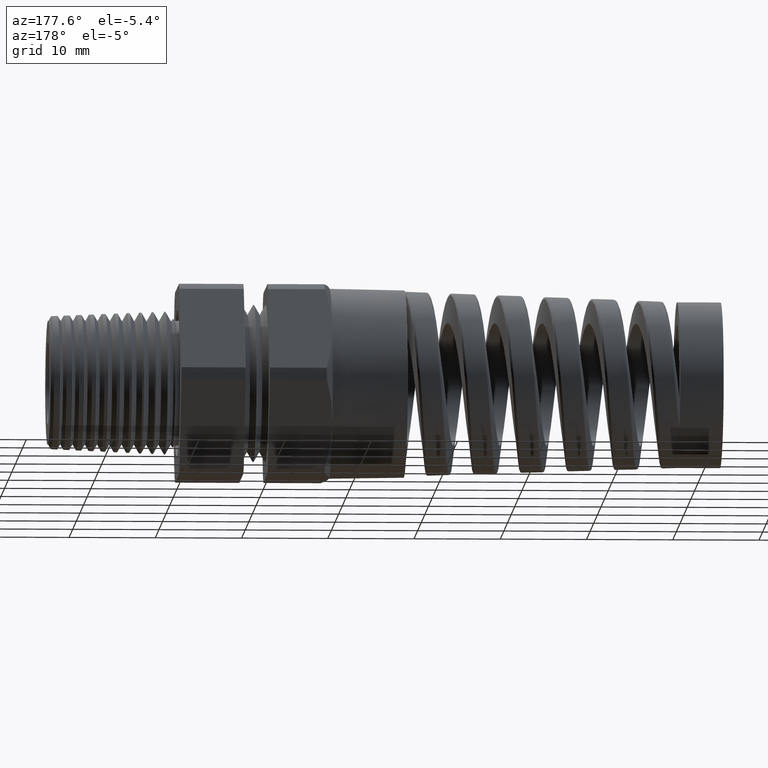
[diagram: clean part render]
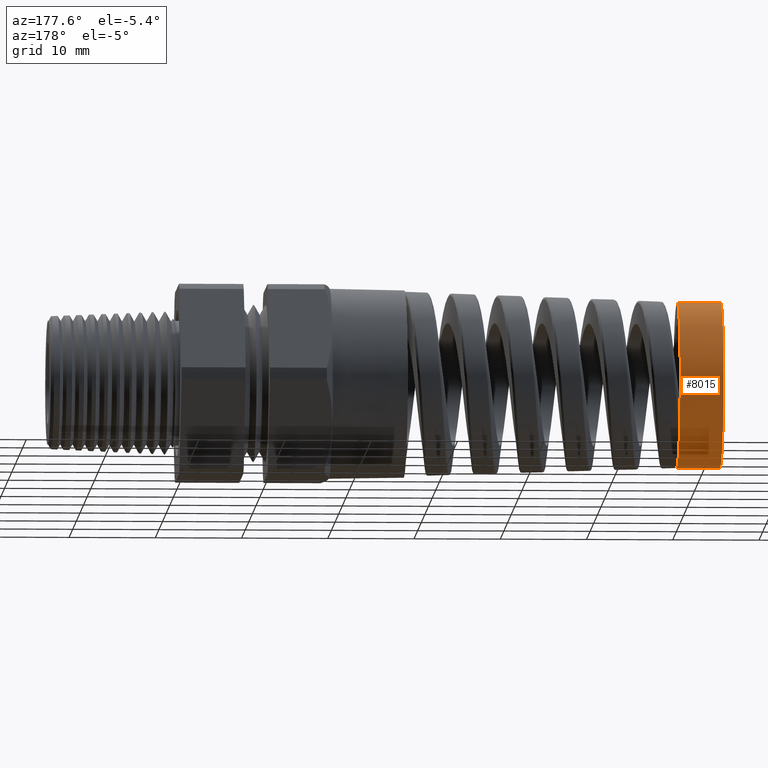
[diagram: same view with one face highlighted and labeled with its STEP entity id]
A machine part, auxiliary view. The second image highlights one B-rep face of the part: STEP entity #8015.
In plain terms, the highlighted cylindrical surface (partial cylindrical patch) has radius 9.6402 mm, axis along (1, 0, 0).
Its self-contained STEP definition (entity closure, byte-faithful):
#4292 = CIRCLE ( 'NONE', #4355, 0.3795341310835476100 ) ;
#4347 = DIRECTION ( 'NONE',  ( 1.000000000000000000, 0.0000000000000000000, 0.0000000000000000000 ) ) ;
#4348 = VECTOR ( 'NONE', #4347, 39.37007874015748100 ) ;
#4349 = CARTESIAN_POINT ( 'NONE',  ( -2.480000000000000000, 0.0000000000000000000, -0.3795341310835490000 ) ) ;
#4350 = LINE ( 'NONE', #4349, #4348 ) ;
#4351 = CARTESIAN_POINT ( 'NONE',  ( -2.281600000000000100, 0.0000000000000000000, -0.3795341310835476100 ) ) ;
#4352 = DIRECTION ( 'NONE',  ( 0.0000000000000000000, 0.0000000000000000000, -1.000000000000000000 ) ) ;
#4353 = DIRECTION ( 'NONE',  ( 1.000000000000000000, 0.0000000000000000000, 0.0000000000000000000 ) ) ;
#4354 = CARTESIAN_POINT ( 'NONE',  ( -2.281600000000000100, 0.0000000000000000000, 0.0000000000000000000 ) ) ;
#4355 = AXIS2_PLACEMENT_3D ( 'NONE', #4354, #4353, #4352 ) ;
#4770 = CARTESIAN_POINT ( 'NONE',  ( -2.281600000000000100, 0.2669025878950507800, -0.2698317350354997900 ) ) ;
#4771 = DIRECTION ( 'NONE',  ( 0.0000000000000000000, 0.0000000000000000000, 1.000000000000000000 ) ) ;
#4772 = DIRECTION ( 'NONE',  ( -1.000000000000000000, 0.0000000000000000000, 0.0000000000000000000 ) ) ;
#4773 = CARTESIAN_POINT ( 'NONE',  ( -2.281600000000000100, 0.0000000000000000000, 0.0000000000000000000 ) ) ;
#4774 = AXIS2_PLACEMENT_3D ( 'NONE', #4773, #4772, #4771 ) ;
#4775 = CIRCLE ( 'NONE', #4774, 0.3795341310835490000 ) ;
#4864 = CARTESIAN_POINT ( 'NONE',  ( -2.480000000000000000, 4.647952587986402100E-017, 0.3795341310835490000 ) ) ;
#4865 = DIRECTION ( 'NONE',  ( 0.0000000000000000000, 0.0000000000000000000, 1.000000000000000000 ) ) ;
#4866 = DIRECTION ( 'NONE',  ( -1.000000000000000000, 0.0000000000000000000, 0.0000000000000000000 ) ) ;
#4867 = AXIS2_PLACEMENT_3D ( 'NONE', #4873, #4866, #4865 ) ;
#4868 = CIRCLE ( 'NONE', #4867, 0.3795341310835490000 ) ;
#4869 = DIRECTION ( 'NONE',  ( 0.0000000000000000000, 0.0000000000000000000, -1.000000000000000000 ) ) ;
#4870 = DIRECTION ( 'NONE',  ( 1.000000000000000000, 0.0000000000000000000, 0.0000000000000000000 ) ) ;
#4871 = CARTESIAN_POINT ( 'NONE',  ( -2.480000000000000000, 0.0000000000000000000, 0.0000000000000000000 ) ) ;
#4872 = AXIS2_PLACEMENT_3D ( 'NONE', #4871, #4870, #4869 ) ;
#4873 = CARTESIAN_POINT ( 'NONE',  ( -2.480000000000000000, 0.0000000000000000000, 0.0000000000000000000 ) ) ;
#4874 = CYLINDRICAL_SURFACE ( 'NONE', #4872, 0.3795341310835490000 ) ;
#4875 = FACE_OUTER_BOUND ( 'NONE', #8016, .T. ) ;
#4923 = CARTESIAN_POINT ( 'NONE',  ( -2.281600000000000100, 4.647952587986402100E-017, 0.3795341310835490000 ) ) ;
#4924 = DIRECTION ( 'NONE',  ( 1.000000000000000000, 0.0000000000000000000, 0.0000000000000000000 ) ) ;
#4925 = VECTOR ( 'NONE', #4924, 39.37007874015748100 ) ;
#4926 = CARTESIAN_POINT ( 'NONE',  ( -2.480000000000000000, 4.647952587986402100E-017, 0.3795341310835490000 ) ) ;
#4927 = LINE ( 'NONE', #4926, #4925 ) ;
#4928 = CARTESIAN_POINT ( 'NONE',  ( -2.480000000000000000, 0.0000000000000000000, -0.3795341310835490000 ) ) ;
#7909 = EDGE_CURVE ( 'NONE', #7910, #7991, #4292, .T. ) ;
#7910 = VERTEX_POINT ( 'NONE', #4351 ) ;
#7911 = ORIENTED_EDGE ( 'NONE', *, *, #7912, .F. ) ;
#7912 = EDGE_CURVE ( 'NONE', #8020, #7910, #4350, .T. ) ;
#7989 = ORIENTED_EDGE ( 'NONE', *, *, #7990, .T. ) ;
#7990 = EDGE_CURVE ( 'NONE', #8023, #7991, #4775, .T. ) ;
#7991 = VERTEX_POINT ( 'NONE', #4770 ) ;
#7992 = ORIENTED_EDGE ( 'NONE', *, *, #7909, .F. ) ;
#8015 = ADVANCED_FACE ( 'NONE', ( #4875 ), #4874, .T. ) ;
#8016 = EDGE_LOOP ( 'NONE', ( #8017, #8021, #7989, #7992, #7911 ) ) ;
#8017 = ORIENTED_EDGE ( 'NONE', *, *, #8018, .F. ) ;
#8018 = EDGE_CURVE ( 'NONE', #8019, #8020, #4868, .T. ) ;
#8019 = VERTEX_POINT ( 'NONE', #4864 ) ;
#8020 = VERTEX_POINT ( 'NONE', #4928 ) ;
#8021 = ORIENTED_EDGE ( 'NONE', *, *, #8022, .T. ) ;
#8022 = EDGE_CURVE ( 'NONE', #8019, #8023, #4927, .T. ) ;
#8023 = VERTEX_POINT ( 'NONE', #4923 ) ;